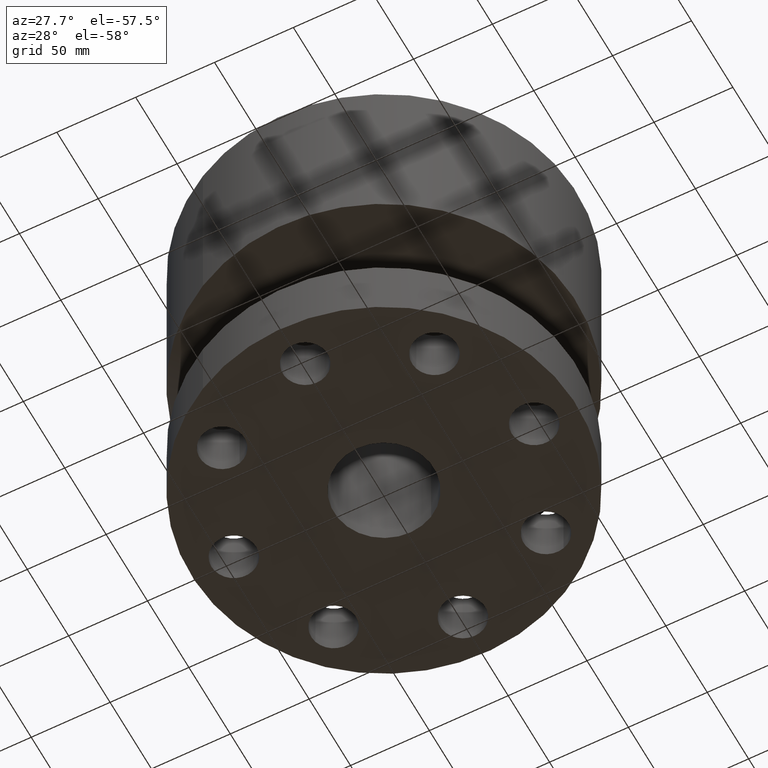
[diagram: clean part render]
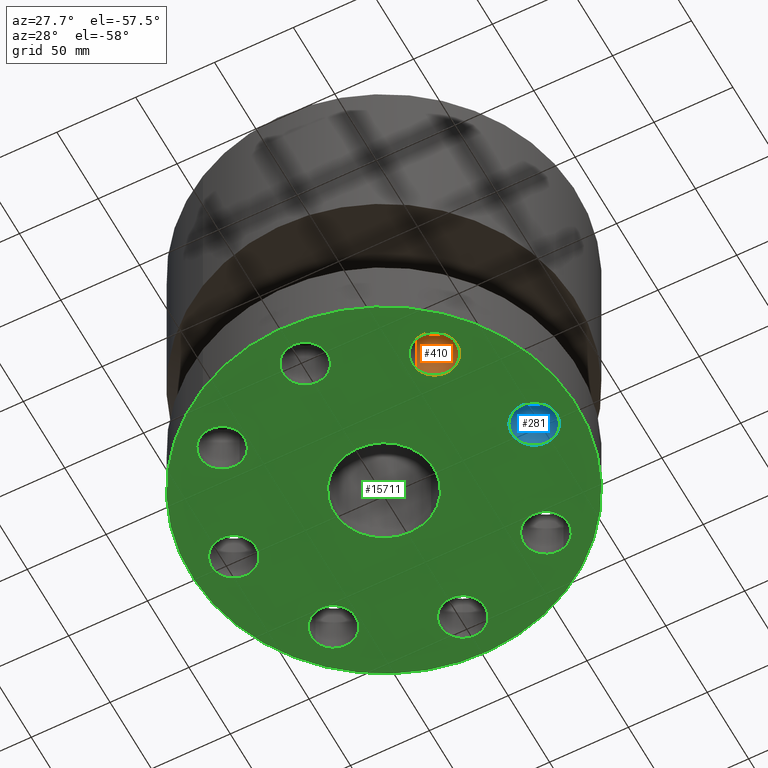
[diagram: same view with three faces highlighted in distinct colors, each labeled with its STEP entity id]
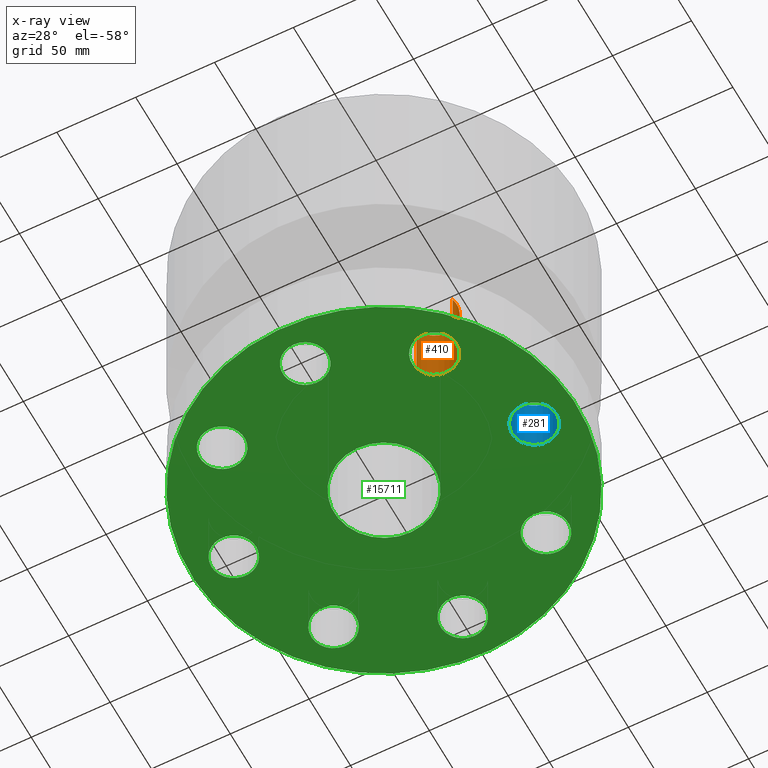
[diagram: x-ray of the same camera — body ghosted, the three highlighted faces saturated]
A machine part, auxiliary view with three faces highlighted in distinct colors.
The next image is the same camera in x-ray (body ghosted, the three faces saturated) — at least one of them is partly hidden behind the body in this view.
Their STEP definitions:

[orange] entity #410 — the highlighted cylindrical surface (edge-blend (fillet) strip) has radius 14.224 mm, axis along (-0, 0, 1).
#127=AXIS2_PLACEMENT_3D('Circle Axis2P3D',#125,#126,$) ;
#371=AXIS2_PLACEMENT_3D('Cylinder Axis2P3D',#368,#369,#370) ;
#401=AXIS2_PLACEMENT_3D('Circle Axis2P3D',#399,#400,$) ;
#125=CARTESIAN_POINT('Axis2P3D Location',(2.65165042946,-2.65165042946,1.62000000001)) ;
#129=CARTESIAN_POINT('Vertex',(2.11430263667,-2.49398829202,1.62000000001)) ;
#131=CARTESIAN_POINT('Vertex',(3.18899822225,-2.8093125669,1.62000000001)) ;
#368=CARTESIAN_POINT('Axis2P3D Location',(2.65165042946,-2.65165042946,0.00393700787402)) ;
#373=CARTESIAN_POINT('Line Origine',(3.18899822225,-2.8093125669,0.810000000003)) ;
#377=CARTESIAN_POINT('Vertex',(3.18899822225,-2.8093125669,2.2401153548E-016)) ;
#384=CARTESIAN_POINT('Vertex',(2.11430263667,-2.49398829202,2.2401153548E-016)) ;
#387=CARTESIAN_POINT('Line Origine',(2.11430263667,-2.49398829202,0.810000000003)) ;
#399=CARTESIAN_POINT('Axis2P3D Location',(2.65165042946,-2.65165042946,0.)) ;
#126=DIRECTION('Axis2P3D Direction',(0.,0.,-0.0393700787402)) ;
#369=DIRECTION('Axis2P3D Direction',(-0.,0.,0.0393700787402)) ;
#370=DIRECTION('Axis2P3D XDirection',(0.0377775444876,-0.0110842335096,0.)) ;
#374=DIRECTION('Vector Direction',(0.,0.,0.0393700787402)) ;
#388=DIRECTION('Vector Direction',(0.,0.,0.0393700787402)) ;
#400=DIRECTION('Axis2P3D Direction',(-0.,0.,0.0393700787402)) ;
#375=VECTOR('Line Direction',#374,0.0393700787402) ;
#389=VECTOR('Line Direction',#388,0.0393700787402) ;
#405=ORIENTED_EDGE('',*,*,#391,.T.) ;
#406=ORIENTED_EDGE('',*,*,#403,.T.) ;
#407=ORIENTED_EDGE('',*,*,#379,.F.) ;
#408=ORIENTED_EDGE('',*,*,#133,.F.) ;
#410=ADVANCED_FACE('PartBody',(#409),#372,.F.) ;
#128=CIRCLE('generated circle',#127,0.560000000002) ;
#402=CIRCLE('generated circle',#401,0.560000000002) ;
#372=CYLINDRICAL_SURFACE('generated cylinder',#371,0.560000000002) ;
#133=EDGE_CURVE('',#130,#132,#128,.T.) ;
#379=EDGE_CURVE('',#132,#378,#376,.F.) ;
#391=EDGE_CURVE('',#130,#385,#390,.F.) ;
#403=EDGE_CURVE('',#385,#378,#402,.F.) ;
#404=EDGE_LOOP('',(#405,#406,#407,#408)) ;
#409=FACE_OUTER_BOUND('',#404,.T.) ;
#376=LINE('Line',#373,#375) ;
#390=LINE('Line',#387,#389) ;
#130=VERTEX_POINT('',#129) ;
#132=VERTEX_POINT('',#131) ;
#378=VERTEX_POINT('',#377) ;
#385=VERTEX_POINT('',#384) ;

[blue] entity #281 — the highlighted cylindrical surface (edge-blend (fillet) strip) has radius 14.224 mm, axis along (0, -0, 1).
#38=AXIS2_PLACEMENT_3D('Cylinder Axis2P3D',#35,#36,#37) ;
#100=AXIS2_PLACEMENT_3D('Circle Axis2P3D',#98,#99,$) ;
#272=AXIS2_PLACEMENT_3D('Circle Axis2P3D',#270,#271,$) ;
#35=CARTESIAN_POINT('Axis2P3D Location',(3.75000000002,0.,0.00393700787402)) ;
#40=CARTESIAN_POINT('Line Origine',(4.24144623468,0.268478301619,0.810000000003)) ;
#44=CARTESIAN_POINT('Vertex',(4.24144623468,0.268478301619,1.62000000001)) ;
#46=CARTESIAN_POINT('Vertex',(4.24144623468,0.268478301619,2.2401153548E-016)) ;
#53=CARTESIAN_POINT('Vertex',(3.25855376535,-0.268478301619,2.2401153548E-016)) ;
#56=CARTESIAN_POINT('Line Origine',(3.25855376535,-0.268478301619,0.810000000003)) ;
#60=CARTESIAN_POINT('Vertex',(3.25855376535,-0.268478301619,1.62000000001)) ;
#98=CARTESIAN_POINT('Axis2P3D Location',(3.75000000002,5.59482469102E-016,1.62000000001)) ;
#270=CARTESIAN_POINT('Axis2P3D Location',(3.75000000002,0.,0.)) ;
#36=DIRECTION('Axis2P3D Direction',(0.,-0.,0.0393700787402)) ;
#37=DIRECTION('Axis2P3D XDirection',(0.0345504945626,0.0188750212049,0.)) ;
#41=DIRECTION('Vector Direction',(0.,0.,0.0393700787402)) ;
#57=DIRECTION('Vector Direction',(0.,0.,0.0393700787402)) ;
#99=DIRECTION('Axis2P3D Direction',(0.,0.,-0.0393700787402)) ;
#271=DIRECTION('Axis2P3D Direction',(0.,-0.,0.0393700787402)) ;
#42=VECTOR('Line Direction',#41,0.0393700787402) ;
#58=VECTOR('Line Direction',#57,0.0393700787402) ;
#276=ORIENTED_EDGE('',*,*,#62,.T.) ;
#277=ORIENTED_EDGE('',*,*,#274,.T.) ;
#278=ORIENTED_EDGE('',*,*,#48,.F.) ;
#279=ORIENTED_EDGE('',*,*,#102,.F.) ;
#281=ADVANCED_FACE('PartBody',(#280),#39,.F.) ;
#101=CIRCLE('generated circle',#100,0.560000000002) ;
#273=CIRCLE('generated circle',#272,0.560000000002) ;
#39=CYLINDRICAL_SURFACE('generated cylinder',#38,0.560000000002) ;
#48=EDGE_CURVE('',#45,#47,#43,.F.) ;
#62=EDGE_CURVE('',#61,#54,#59,.F.) ;
#102=EDGE_CURVE('',#61,#45,#101,.T.) ;
#274=EDGE_CURVE('',#54,#47,#273,.F.) ;
#275=EDGE_LOOP('',(#276,#277,#278,#279)) ;
#280=FACE_OUTER_BOUND('',#275,.T.) ;
#43=LINE('Line',#40,#42) ;
#59=LINE('Line',#56,#58) ;
#45=VERTEX_POINT('',#44) ;
#47=VERTEX_POINT('',#46) ;
#54=VERTEX_POINT('',#53) ;
#61=VERTEX_POINT('',#60) ;

[green] entity #15711 — the highlighted planar face has unit normal (0, 0, 1).
#51=AXIS2_PLACEMENT_3D('Circle Axis2P3D',#49,#50,$) ;
#272=AXIS2_PLACEMENT_3D('Circle Axis2P3D',#270,#271,$) ;
#289=AXIS2_PLACEMENT_3D('Circle Axis2P3D',#287,#288,$) ;
#315=AXIS2_PLACEMENT_3D('Circle Axis2P3D',#313,#314,$) ;
#382=AXIS2_PLACEMENT_3D('Circle Axis2P3D',#380,#381,$) ;
#401=AXIS2_PLACEMENT_3D('Circle Axis2P3D',#399,#400,$) ;
#425=AXIS2_PLACEMENT_3D('Circle Axis2P3D',#423,#424,$) ;
#444=AXIS2_PLACEMENT_3D('Circle Axis2P3D',#442,#443,$) ;
#468=AXIS2_PLACEMENT_3D('Circle Axis2P3D',#466,#467,$) ;
#487=AXIS2_PLACEMENT_3D('Circle Axis2P3D',#485,#486,$) ;
#511=AXIS2_PLACEMENT_3D('Circle Axis2P3D',#509,#510,$) ;
#530=AXIS2_PLACEMENT_3D('Circle Axis2P3D',#528,#529,$) ;
#554=AXIS2_PLACEMENT_3D('Circle Axis2P3D',#552,#553,$) ;
#573=AXIS2_PLACEMENT_3D('Circle Axis2P3D',#571,#572,$) ;
#597=AXIS2_PLACEMENT_3D('Circle Axis2P3D',#595,#596,$) ;
#616=AXIS2_PLACEMENT_3D('Circle Axis2P3D',#614,#615,$) ;
#640=AXIS2_PLACEMENT_3D('Circle Axis2P3D',#638,#639,$) ;
#659=AXIS2_PLACEMENT_3D('Circle Axis2P3D',#657,#658,$) ;
#15630=AXIS2_PLACEMENT_3D('Circle Axis2P3D',#15628,#15629,$) ;
#15656=AXIS2_PLACEMENT_3D('Circle Axis2P3D',#15654,#15655,$) ;
#15669=AXIS2_PLACEMENT_3D('Plane Axis2P3D',#15666,#15667,#15668) ;
#46=CARTESIAN_POINT('Vertex',(4.24144623468,0.268478301619,2.2401153548E-016)) ;
#49=CARTESIAN_POINT('Axis2P3D Location',(3.75000000002,0.,0.)) ;
#53=CARTESIAN_POINT('Vertex',(3.25855376535,-0.268478301619,2.2401153548E-016)) ;
#270=CARTESIAN_POINT('Axis2P3D Location',(3.75000000002,0.,0.)) ;
#287=CARTESIAN_POINT('Axis2P3D Location',(0.,0.,5.59482469102E-016)) ;
#291=CARTESIAN_POINT('Vertex',(-2.3060368407,-4.22117212271,1.1189649382E-015)) ;
#293=CARTESIAN_POINT('Vertex',(2.3060368407,4.22117212271,1.1189649382E-015)) ;
#313=CARTESIAN_POINT('Axis2P3D Location',(0.,0.,5.59482469102E-016)) ;
#377=CARTESIAN_POINT('Vertex',(3.18899822225,-2.8093125669,2.2401153548E-016)) ;
#380=CARTESIAN_POINT('Axis2P3D Location',(2.65165042946,-2.65165042946,0.)) ;
#384=CARTESIAN_POINT('Vertex',(2.11430263667,-2.49398829202,2.2401153548E-016)) ;
#399=CARTESIAN_POINT('Axis2P3D Location',(2.65165042946,-2.65165042946,0.)) ;
#420=CARTESIAN_POINT('Vertex',(0.268478301619,-4.24144623468,2.2401153548E-016)) ;
#423=CARTESIAN_POINT('Axis2P3D Location',(2.29621274841E-016,-3.75000000002,0.)) ;
#427=CARTESIAN_POINT('Vertex',(-0.268478301619,-3.25855376535,2.2401153548E-016)) ;
#442=CARTESIAN_POINT('Axis2P3D Location',(2.29621274841E-016,-3.75000000002,0.)) ;
#463=CARTESIAN_POINT('Vertex',(-2.8093125669,-3.18899822225,2.2401153548E-016)) ;
#466=CARTESIAN_POINT('Axis2P3D Location',(-2.65165042946,-2.65165042946,0.)) ;
#470=CARTESIAN_POINT('Vertex',(-2.49398829202,-2.11430263667,2.2401153548E-016)) ;
#485=CARTESIAN_POINT('Axis2P3D Location',(-2.65165042946,-2.65165042946,0.)) ;
#506=CARTESIAN_POINT('Vertex',(-4.24144623468,-0.268478301619,2.2401153548E-016)) ;
#509=CARTESIAN_POINT('Axis2P3D Location',(-3.75000000002,-4.59242549682E-016,0.)) ;
#513=CARTESIAN_POINT('Vertex',(-3.25855376535,0.268478301619,2.2401153548E-016)) ;
#528=CARTESIAN_POINT('Axis2P3D Location',(-3.75000000002,-4.59242549682E-016,0.)) ;
#549=CARTESIAN_POINT('Vertex',(-3.18899822225,2.8093125669,2.2401153548E-016)) ;
#552=CARTESIAN_POINT('Axis2P3D Location',(-2.65165042946,2.65165042946,0.)) ;
#556=CARTESIAN_POINT('Vertex',(-2.11430263667,2.49398829202,2.2401153548E-016)) ;
#571=CARTESIAN_POINT('Axis2P3D Location',(-2.65165042946,2.65165042946,0.)) ;
#592=CARTESIAN_POINT('Vertex',(-0.268478301619,4.24144623468,2.2401153548E-016)) ;
#595=CARTESIAN_POINT('Axis2P3D Location',(-1.24834629363E-015,3.75000000002,0.)) ;
#599=CARTESIAN_POINT('Vertex',(0.268478301619,3.25855376535,2.2401153548E-016)) ;
#614=CARTESIAN_POINT('Axis2P3D Location',(-1.24834629363E-015,3.75000000002,0.)) ;
#635=CARTESIAN_POINT('Vertex',(2.8093125669,3.18899822225,2.2401153548E-016)) ;
#638=CARTESIAN_POINT('Axis2P3D Location',(2.65165042946,2.65165042946,0.)) ;
#642=CARTESIAN_POINT('Vertex',(2.49398829202,2.11430263667,2.2401153548E-016)) ;
#657=CARTESIAN_POINT('Axis2P3D Location',(2.65165042946,2.65165042946,0.)) ;
#15628=CARTESIAN_POINT('Axis2P3D Location',(0.,0.,0.)) ;
#15632=CARTESIAN_POINT('Vertex',(-0.599281923258,-1.09697820237,0.)) ;
#15634=CARTESIAN_POINT('Vertex',(0.599281923258,1.09697820237,0.)) ;
#15654=CARTESIAN_POINT('Axis2P3D Location',(0.,0.,0.)) ;
#15666=CARTESIAN_POINT('Axis2P3D Location',(0.,0.,0.)) ;
#50=DIRECTION('Axis2P3D Direction',(0.,-0.,0.0393700787402)) ;
#271=DIRECTION('Axis2P3D Direction',(0.,-0.,0.0393700787402)) ;
#288=DIRECTION('Axis2P3D Direction',(0.,0.,-0.0393700787402)) ;
#314=DIRECTION('Axis2P3D Direction',(0.,0.,-0.0393700787402)) ;
#381=DIRECTION('Axis2P3D Direction',(-0.,0.,0.0393700787402)) ;
#400=DIRECTION('Axis2P3D Direction',(-0.,0.,0.0393700787402)) ;
#424=DIRECTION('Axis2P3D Direction',(-0.,0.,0.0393700787402)) ;
#443=DIRECTION('Axis2P3D Direction',(-0.,0.,0.0393700787402)) ;
#467=DIRECTION('Axis2P3D Direction',(0.,0.,0.0393700787402)) ;
#486=DIRECTION('Axis2P3D Direction',(0.,0.,0.0393700787402)) ;
#510=DIRECTION('Axis2P3D Direction',(0.,0.,0.0393700787402)) ;
#529=DIRECTION('Axis2P3D Direction',(0.,0.,0.0393700787402)) ;
#553=DIRECTION('Axis2P3D Direction',(0.,0.,0.0393700787402)) ;
#572=DIRECTION('Axis2P3D Direction',(0.,0.,0.0393700787402)) ;
#596=DIRECTION('Axis2P3D Direction',(0.,0.,0.0393700787402)) ;
#615=DIRECTION('Axis2P3D Direction',(0.,0.,0.0393700787402)) ;
#639=DIRECTION('Axis2P3D Direction',(0.,-0.,0.0393700787402)) ;
#658=DIRECTION('Axis2P3D Direction',(0.,-0.,0.0393700787402)) ;
#15629=DIRECTION('Axis2P3D Direction',(0.,0.,-0.0393700787402)) ;
#15655=DIRECTION('Axis2P3D Direction',(0.,0.,-0.0393700787402)) ;
#15667=DIRECTION('Axis2P3D Direction',(0.,0.,0.0393700787402)) ;
#15668=DIRECTION('Axis2P3D XDirection',(0.0393700787402,0.,0.)) ;
#15672=ORIENTED_EDGE('',*,*,#317,.T.) ;
#15673=ORIENTED_EDGE('',*,*,#295,.T.) ;
#15676=ORIENTED_EDGE('',*,*,#644,.F.) ;
#15677=ORIENTED_EDGE('',*,*,#661,.F.) ;
#15680=ORIENTED_EDGE('',*,*,#601,.F.) ;
#15681=ORIENTED_EDGE('',*,*,#618,.F.) ;
#15684=ORIENTED_EDGE('',*,*,#558,.F.) ;
#15685=ORIENTED_EDGE('',*,*,#575,.F.) ;
#15688=ORIENTED_EDGE('',*,*,#515,.F.) ;
#15689=ORIENTED_EDGE('',*,*,#532,.F.) ;
#15692=ORIENTED_EDGE('',*,*,#472,.F.) ;
#15693=ORIENTED_EDGE('',*,*,#489,.F.) ;
#15696=ORIENTED_EDGE('',*,*,#429,.F.) ;
#15697=ORIENTED_EDGE('',*,*,#446,.F.) ;
#15700=ORIENTED_EDGE('',*,*,#386,.F.) ;
#15701=ORIENTED_EDGE('',*,*,#403,.F.) ;
#15704=ORIENTED_EDGE('',*,*,#274,.F.) ;
#15705=ORIENTED_EDGE('',*,*,#55,.F.) ;
#15708=ORIENTED_EDGE('',*,*,#15658,.T.) ;
#15709=ORIENTED_EDGE('',*,*,#15636,.T.) ;
#15678=FACE_BOUND('',#15675,.T.) ;
#15682=FACE_BOUND('',#15679,.T.) ;
#15686=FACE_BOUND('',#15683,.T.) ;
#15690=FACE_BOUND('',#15687,.T.) ;
#15694=FACE_BOUND('',#15691,.T.) ;
#15698=FACE_BOUND('',#15695,.T.) ;
#15702=FACE_BOUND('',#15699,.T.) ;
#15706=FACE_BOUND('',#15703,.T.) ;
#15710=FACE_BOUND('',#15707,.T.) ;
#15711=ADVANCED_FACE('PartBody',(#15674,#15678,#15682,#15686,#15690,#15694,#15698,#15702,#15706,#15710),#15670,.F.) ;
#52=CIRCLE('generated circle',#51,0.560000000002) ;
#273=CIRCLE('generated circle',#272,0.560000000002) ;
#290=CIRCLE('generated circle',#289,4.81000000002) ;
#316=CIRCLE('generated circle',#315,4.81000000002) ;
#383=CIRCLE('generated circle',#382,0.560000000002) ;
#402=CIRCLE('generated circle',#401,0.560000000002) ;
#426=CIRCLE('generated circle',#425,0.560000000002) ;
#445=CIRCLE('generated circle',#444,0.560000000002) ;
#469=CIRCLE('generated circle',#468,0.560000000002) ;
#488=CIRCLE('generated circle',#487,0.560000000002) ;
#512=CIRCLE('generated circle',#511,0.560000000002) ;
#531=CIRCLE('generated circle',#530,0.560000000002) ;
#555=CIRCLE('generated circle',#554,0.560000000002) ;
#574=CIRCLE('generated circle',#573,0.560000000002) ;
#598=CIRCLE('generated circle',#597,0.560000000002) ;
#617=CIRCLE('generated circle',#616,0.560000000002) ;
#641=CIRCLE('generated circle',#640,0.560000000002) ;
#660=CIRCLE('generated circle',#659,0.560000000002) ;
#15631=CIRCLE('generated circle',#15630,1.25000000001) ;
#15657=CIRCLE('generated circle',#15656,1.25000000001) ;
#55=EDGE_CURVE('',#47,#54,#52,.F.) ;
#274=EDGE_CURVE('',#54,#47,#273,.F.) ;
#295=EDGE_CURVE('',#292,#294,#290,.T.) ;
#317=EDGE_CURVE('',#294,#292,#316,.T.) ;
#386=EDGE_CURVE('',#378,#385,#383,.F.) ;
#403=EDGE_CURVE('',#385,#378,#402,.F.) ;
#429=EDGE_CURVE('',#421,#428,#426,.F.) ;
#446=EDGE_CURVE('',#428,#421,#445,.F.) ;
#472=EDGE_CURVE('',#464,#471,#469,.F.) ;
#489=EDGE_CURVE('',#471,#464,#488,.F.) ;
#515=EDGE_CURVE('',#507,#514,#512,.F.) ;
#532=EDGE_CURVE('',#514,#507,#531,.F.) ;
#558=EDGE_CURVE('',#550,#557,#555,.F.) ;
#575=EDGE_CURVE('',#557,#550,#574,.F.) ;
#601=EDGE_CURVE('',#593,#600,#598,.F.) ;
#618=EDGE_CURVE('',#600,#593,#617,.F.) ;
#644=EDGE_CURVE('',#636,#643,#641,.F.) ;
#661=EDGE_CURVE('',#643,#636,#660,.F.) ;
#15636=EDGE_CURVE('',#15633,#15635,#15631,.F.) ;
#15658=EDGE_CURVE('',#15635,#15633,#15657,.F.) ;
#15671=EDGE_LOOP('',(#15672,#15673)) ;
#15675=EDGE_LOOP('',(#15676,#15677)) ;
#15679=EDGE_LOOP('',(#15680,#15681)) ;
#15683=EDGE_LOOP('',(#15684,#15685)) ;
#15687=EDGE_LOOP('',(#15688,#15689)) ;
#15691=EDGE_LOOP('',(#15692,#15693)) ;
#15695=EDGE_LOOP('',(#15696,#15697)) ;
#15699=EDGE_LOOP('',(#15700,#15701)) ;
#15703=EDGE_LOOP('',(#15704,#15705)) ;
#15707=EDGE_LOOP('',(#15708,#15709)) ;
#15674=FACE_OUTER_BOUND('',#15671,.T.) ;
#15670=PLANE('',#15669) ;
#47=VERTEX_POINT('',#46) ;
#54=VERTEX_POINT('',#53) ;
#292=VERTEX_POINT('',#291) ;
#294=VERTEX_POINT('',#293) ;
#378=VERTEX_POINT('',#377) ;
#385=VERTEX_POINT('',#384) ;
#421=VERTEX_POINT('',#420) ;
#428=VERTEX_POINT('',#427) ;
#464=VERTEX_POINT('',#463) ;
#471=VERTEX_POINT('',#470) ;
#507=VERTEX_POINT('',#506) ;
#514=VERTEX_POINT('',#513) ;
#550=VERTEX_POINT('',#549) ;
#557=VERTEX_POINT('',#556) ;
#593=VERTEX_POINT('',#592) ;
#600=VERTEX_POINT('',#599) ;
#636=VERTEX_POINT('',#635) ;
#643=VERTEX_POINT('',#642) ;
#15633=VERTEX_POINT('',#15632) ;
#15635=VERTEX_POINT('',#15634) ;